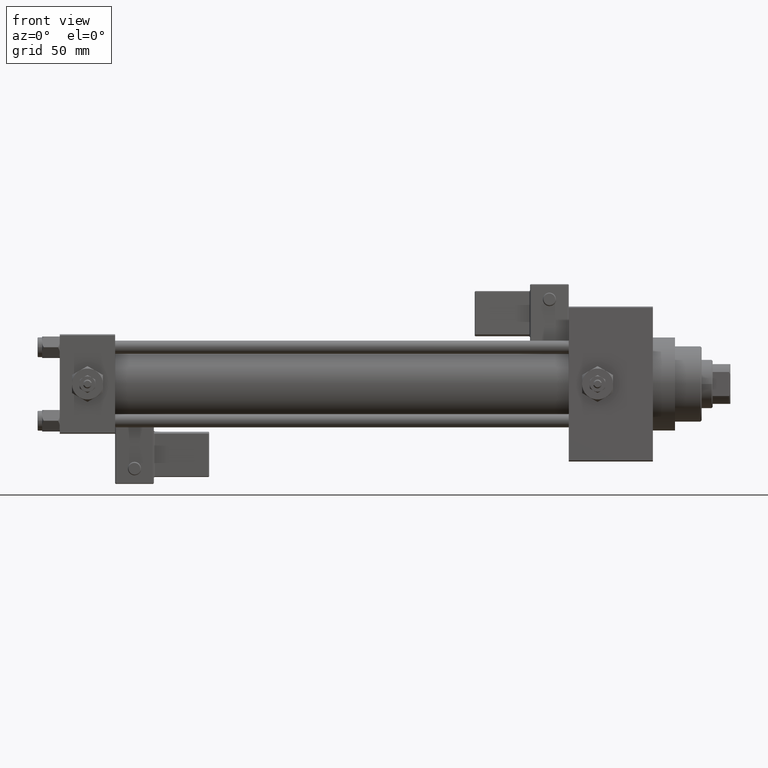
[diagram: clean part render]
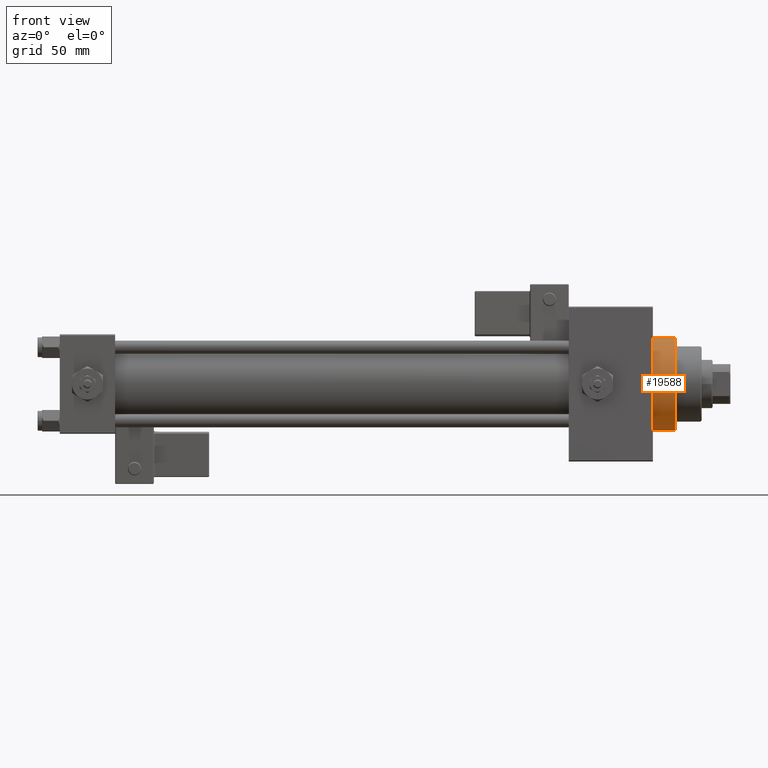
[diagram: same view with one face highlighted and labeled with its STEP entity id]
A machine part, front view. The second image highlights one B-rep face of the part: STEP entity #19588.
In plain terms, the highlighted cylindrical surface (partial cylindrical patch) has radius 21 mm, axis along (-1, -0, -0).
Its self-contained STEP definition (entity closure, byte-faithful):
#2071 = LINE ( 'NONE', #32755, #33696 ) ;
#2762 = CARTESIAN_POINT ( 'NONE',  ( 277.9999999999999432, 0.000000000000000000, 0.000000000000000000 ) ) ;
#3126 = VERTEX_POINT ( 'NONE', #20604 ) ;
#3535 = DIRECTION ( 'NONE',  ( 1.000000000000000000, 0.000000000000000000, 0.000000000000000000 ) ) ;
#5401 = DIRECTION ( 'NONE',  ( -1.000000000000000000, -0.000000000000000000, -0.000000000000000000 ) ) ;
#6431 = DIRECTION ( 'NONE',  ( 0.000000000000000000, 0.000000000000000000, 1.000000000000000000 ) ) ;
#7586 = CARTESIAN_POINT ( 'NONE',  ( 277.9999999999999432, 0.000000000000000000, 21.00000000000000000 ) ) ;
#10001 = ORIENTED_EDGE ( 'NONE', *, *, #14115, .T. ) ;
#10589 = FACE_OUTER_BOUND ( 'NONE', #28998, .T. ) ;
#11259 = AXIS2_PLACEMENT_3D ( 'NONE', #26184, #5401, #6431 ) ;
#12357 = VERTEX_POINT ( 'NONE', #34787 ) ;
#14115 = EDGE_CURVE ( 'NONE', #3126, #41699, #14492, .T. ) ;
#14492 = CIRCLE ( 'NONE', #16155, 21.00000000000000000 ) ;
#14525 = AXIS2_PLACEMENT_3D ( 'NONE', #2762, #3535, #34465 ) ;
#16155 = AXIS2_PLACEMENT_3D ( 'NONE', #21212, #37063, #18331 ) ;
#18103 = CYLINDRICAL_SURFACE ( 'NONE', #11259, 21.00000000000000000 ) ;
#18331 = DIRECTION ( 'NONE',  ( 0.000000000000000000, 0.000000000000000000, -1.000000000000000000 ) ) ;
#18771 = EDGE_CURVE ( 'NONE', #12357, #23938, #36918, .T. ) ;
#19588 = ADVANCED_FACE ( 'NONE', ( #10589 ), #18103, .T. ) ;
#20231 = EDGE_CURVE ( 'NONE', #12357, #3126, #23432, .T. ) ;
#20280 = CARTESIAN_POINT ( 'NONE',  ( 267.9999999999999432, 2.571758278209441661E-15, -21.00000000000000000 ) ) ;
#20293 = DIRECTION ( 'NONE',  ( -1.000000000000000000, -0.000000000000000000, -0.000000000000000000 ) ) ;
#20388 = EDGE_CURVE ( 'NONE', #23938, #41699, #2071, .T. ) ;
#20604 = CARTESIAN_POINT ( 'NONE',  ( 267.9999999999999432, 0.000000000000000000, 21.00000000000000000 ) ) ;
#21212 = CARTESIAN_POINT ( 'NONE',  ( 267.9999999999999432, 0.000000000000000000, 0.000000000000000000 ) ) ;
#23432 = LINE ( 'NONE', #7586, #40327 ) ;
#23938 = VERTEX_POINT ( 'NONE', #41716 ) ;
#26184 = CARTESIAN_POINT ( 'NONE',  ( 277.9999999999999432, 0.000000000000000000, 0.000000000000000000 ) ) ;
#28998 = EDGE_LOOP ( 'NONE', ( #47444, #29263, #34151, #10001 ) ) ;
#29263 = ORIENTED_EDGE ( 'NONE', *, *, #18771, .F. ) ;
#32755 = CARTESIAN_POINT ( 'NONE',  ( 277.9999999999999432, 2.571758278209441661E-15, -21.00000000000000000 ) ) ;
#33696 = VECTOR ( 'NONE', #49344, 1000.000000000000000 ) ;
#34151 = ORIENTED_EDGE ( 'NONE', *, *, #20231, .T. ) ;
#34465 = DIRECTION ( 'NONE',  ( 0.000000000000000000, 0.000000000000000000, -1.000000000000000000 ) ) ;
#34787 = CARTESIAN_POINT ( 'NONE',  ( 277.9999999999999432, 0.000000000000000000, 21.00000000000000000 ) ) ;
#36918 = CIRCLE ( 'NONE', #14525, 21.00000000000000000 ) ;
#37063 = DIRECTION ( 'NONE',  ( 1.000000000000000000, 0.000000000000000000, 0.000000000000000000 ) ) ;
#40327 = VECTOR ( 'NONE', #20293, 1000.000000000000000 ) ;
#41699 = VERTEX_POINT ( 'NONE', #20280 ) ;
#41716 = CARTESIAN_POINT ( 'NONE',  ( 277.9999999999999432, 2.571758278209441661E-15, -21.00000000000000000 ) ) ;
#47444 = ORIENTED_EDGE ( 'NONE', *, *, #20388, .F. ) ;
#49344 = DIRECTION ( 'NONE',  ( -1.000000000000000000, -0.000000000000000000, -0.000000000000000000 ) ) ;